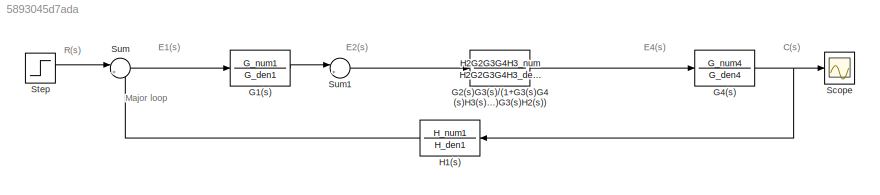
MODEL slx_5893045d7ada
KIND model
CONFIG AbsTol = auto
CONFIG EnableMultiTasking = off
CONFIG FixedStep = auto
CONFIG MaxStep = auto
CONFIG MinStep = auto
CONFIG RelTol = 1e-3
CONFIG SampleTimeConstraint = Unconstrained
CONFIG SolverName = VariableStepAuto
CONFIG StartTime = 0.0
CONFIG StopTime = 20
BLOCK [TransferFcn] G1(s)
  Denominator = G_den1
  Numerator = G_num1
BLOCK [TransferFcn] G2(s)G3(s)//(1+G3(s)G4(s)H3(s)+G2(s)G3(s)H2(s))
  Denominator = H2G2G3G4H3_den_sum
  Numerator = H2G2G3G4H3_num
BLOCK [TransferFcn] G4(s)
  Denominator = G_den4
  Numerator = G_num4
BLOCK [TransferFcn] H1(s)
  Denominator = H_den1
  Numerator = H_num1
BLOCK [Scope] Scope
  Floating = off
  NumInputPorts = 1
  ScopeSpecificationString = Simulink.scopes.TimeScopeBlockCfg('CurrentConfiguration', extmgr.ConfigurationSet(extmgr.Configuration('Core','General UI',true),extmgr.Configuration('Core','Source UI',true),extmgr.Configuration('Sources','WiredSimulink',true),extmgr.Configuration('Visuals','Time Domain',true,'SerializedDisplays',{struct('MinYLimReal','-22330360087440.53125','MaxYLimReal','2481151120833.9126','YLabelReal','','Min...<+1512ch>
BLOCK [Step] Step
  SampleTime = 0
  Time = 0
BLOCK [Sum] Sum
  Inputs = |+-
BLOCK [Sum] Sum1
  Inputs = |+-
ANNOTATION (root): C(s)
ANNOTATION (root): E1(s)
ANNOTATION (root): E2(s)
ANNOTATION (root): E4(s)
ANNOTATION (root): R(s)
ANNOTATION (root): Major loop
LINE G1(s):1 -> Sum1:1
LINE G2(s)G3(s)//(1+G3(s)G4(s)H3(s)+G2(s)G3(s)H2(s)):1 -> G4(s):1
NET G4(s):1 -> H1(s):1, Scope:1
LINE H1(s):1 -> Sum:2
LINE Step:1 -> Sum:1
LINE Sum1:1 -> G2(s)G3(s)//(1+G3(s)G4(s)H3(s)+G2(s)G3(s)H2(s)):1
LINE Sum:1 -> G1(s):1
note: NET lines group one-source signal fan-out (src -> all destinations, sorted); 1:1 wires keep LINE
